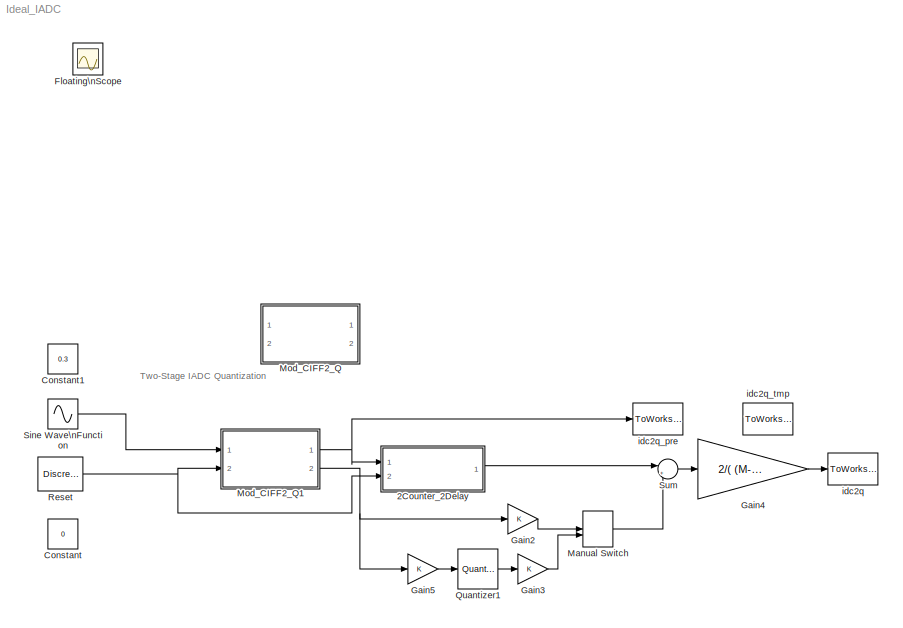
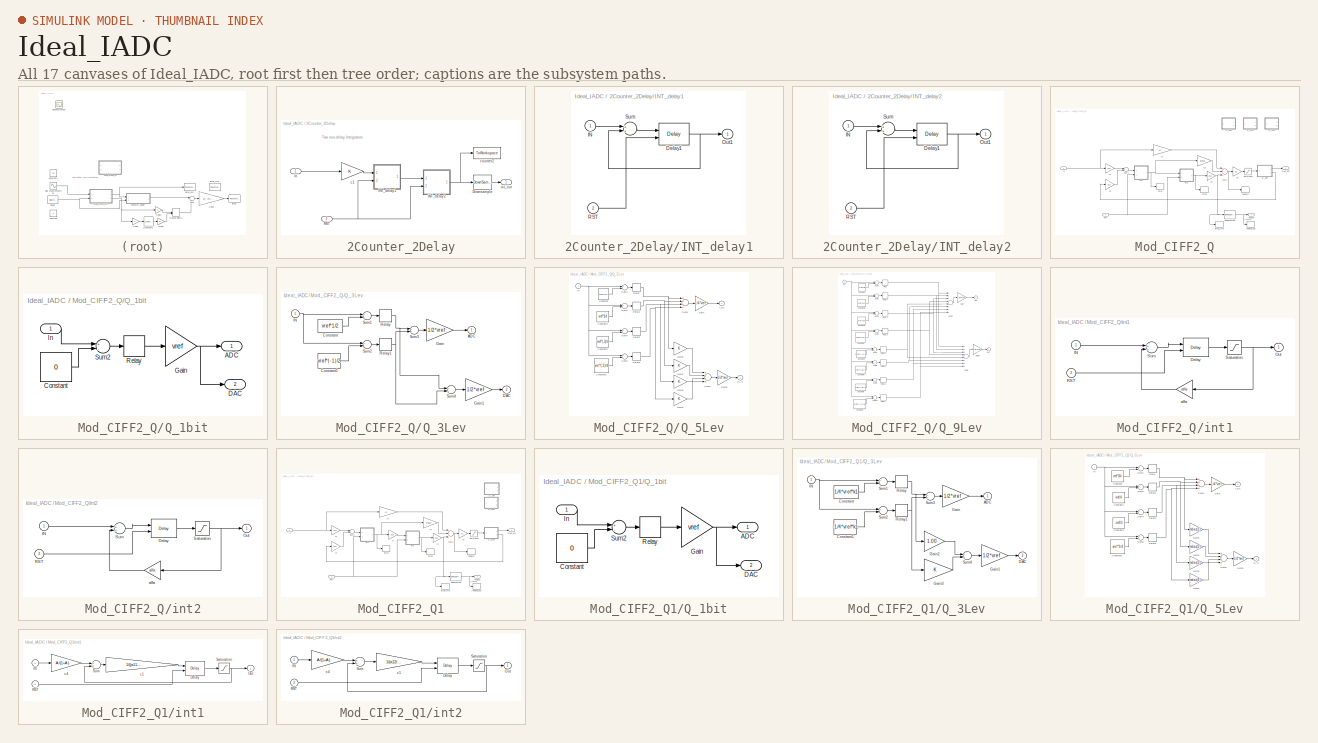
[diagram: thumbnail index - all 17 canvases of the model, root first then tree order]
MODEL Ideal_IADC
KIND model
BLOCK [SubSystem] 2Counter_2Delay
  Ports = [2, 1]
  RequestExecContextInheritance = off
  SID = 12296
BLOCK [DownSample] 2Counter_2Delay/Downsample
  InputProcessing = Elements as channels (sample based)
  N = OSR
  RateOptions = Allow multirate processing
  SID = 12299
  phase = OSR-1
BLOCK [SubSystem] 2Counter_2Delay/INT_delay1
  Ports = [2, 1]
  RequestExecContextInheritance = off
  SID = 12872
BLOCK [Delay] 2Counter_2Delay/INT_delay1/Delay1
  DelayLength = 1
  ExternalReset = Rising
  InitialCondition = 0
  InputPortMap = u0,r5
  Ports = [2, 1]
  SID = 12875
  UserData = DataTag0
  UserDataPersistent = on
BLOCK [Inport] 2Counter_2Delay/INT_delay1/IN
  IconDisplay = Port number
  SID = 12873
BLOCK [Outport] 2Counter_2Delay/INT_delay1/Out1
  IconDisplay = Port number
  SID = 12877
  VectorParamsAs1DForOutWhenUnconnected = off
BLOCK [Inport] 2Counter_2Delay/INT_delay1/RST
  IconDisplay = Port number
  Port = 2
  SID = 12874
BLOCK [Sum] 2Counter_2Delay/INT_delay1/Sum
  Ports = [2, 1]
  SID = 12876
BLOCK [SubSystem] 2Counter_2Delay/INT_delay2
  Ports = [2, 1]
  RequestExecContextInheritance = off
  SID = 12306
BLOCK [Delay] 2Counter_2Delay/INT_delay2/Delay1
  DelayLength = 1
  ExternalReset = Rising
  InitialCondition = 0
  InputPortMap = u0,r5
  Ports = [2, 1]
  SID = 12712
  UserData = DataTag1
  UserDataPersistent = on
BLOCK [Inport] 2Counter_2Delay/INT_delay2/IN
  IconDisplay = Port number
  SID = 12307
BLOCK [Outport] 2Counter_2Delay/INT_delay2/Out1
  IconDisplay = Port number
  SID = 12311
  VectorParamsAs1DForOutWhenUnconnected = off
BLOCK [Inport] 2Counter_2Delay/INT_delay2/RST
  IconDisplay = Port number
  Port = 2
  SID = 12308
BLOCK [Sum] 2Counter_2Delay/INT_delay2/Sum
  Ports = [2, 1]
  SID = 12310
BLOCK [Inport] 2Counter_2Delay/In
  IconDisplay = Port number
  SID = 12297
BLOCK [Inport] 2Counter_2Delay/RST
  IconDisplay = Port number
  Port = 2
  SID = 12298
BLOCK [Gain] 2Counter_2Delay/c1
  SID = 12312
BLOCK [ToWorkspace] 2Counter_2Delay/counter2
  MaxDataPoints = inf
  Ports = [1]
  SID = 12616
  SampleTime = -1
  VariableName = counter2
BLOCK [Outport] 2Counter_2Delay/rst_out
  IconDisplay = Port number
  SID = 12313
  VectorParamsAs1DForOutWhenUnconnected = off
BLOCK [Constant] Constant
  Commented = on
  SID = 12759
  Value = 0
BLOCK [Constant] Constant1
  Commented = on
  SID = 12900
  Value = 0.3
BLOCK [Scope] Floating\nScope
  Floating = off
  IOType = viewer
  NumInputPorts = 1
  Ports = []
  SID = 82
  ScopeSpecificationString = C++SS(StrPVP('Location','[376, 294, 963, 755]'),StrPVP('Open','off'),MxPVP('AxesTitles',54,'struct(''axes1'',''%<SignalLabel>'')'),StrPVP('DataFormat','StructureWithTime'),StrPVP('BlockParamSampleTime','0'),StrPVP('LimitDataPoints','on'),StrPVP('Decimation','1'),StrPVP('BlockParamSampleInput','off'))
BLOCK [Gain] Gain2
  OutDataTypeStr = Inherit: Inherit via internal rule
  ParamDataTypeStr = Inherit: Inherit via internal rule
  SID = 12955
  SaturateOnIntegerOverflow = off
BLOCK [Gain] Gain3
  OutDataTypeStr = Inherit: Inherit via internal rule
  ParamDataTypeStr = Inherit: Inherit via internal rule
  SID = 12956
  SaturateOnIntegerOverflow = off
BLOCK [Gain] Gain4
  Gain = 2/( (M-1)*(M) )
  OutDataTypeStr = Inherit: Inherit via internal rule
  ParamDataTypeStr = Inherit: Inherit via internal rule
  SID = 11902
  SaturateOnIntegerOverflow = off
BLOCK [Gain] Gain5
  OutDataTypeStr = Inherit: Inherit via internal rule
  ParamDataTypeStr = Inherit: Inherit via internal rule
  SID = 12957
  SaturateOnIntegerOverflow = off
BLOCK [ManualSwitch] Manual Switch
  CurrentSetting = 0
  SID = 12958
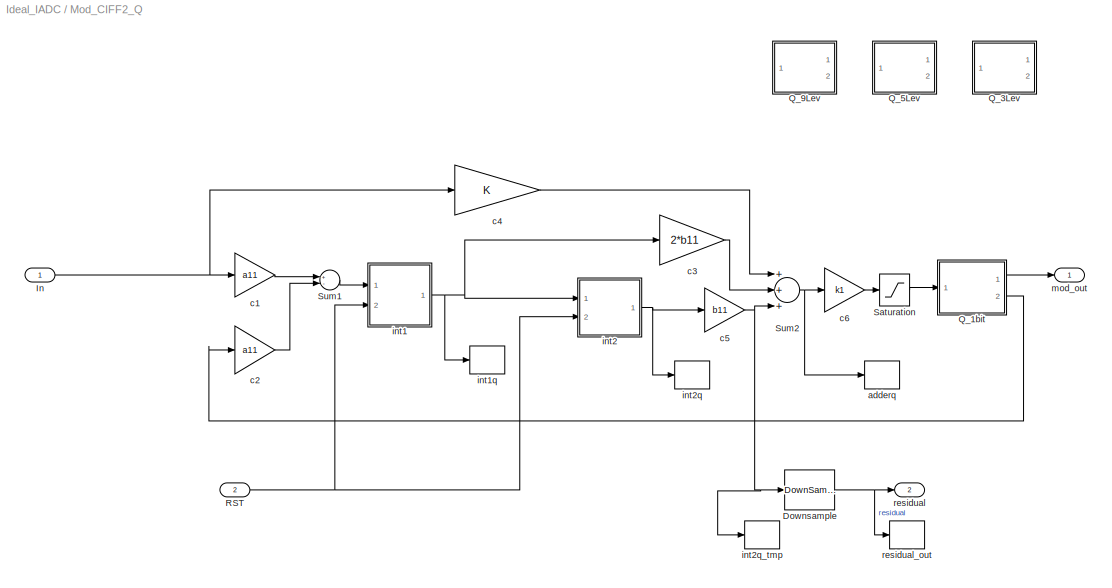
BLOCK [SubSystem] Mod_CIFF2_Q
  Commented = on
  Ports = [2, 2]
  RequestExecContextInheritance = off
  SID = 11903
BLOCK [DownSample] Mod_CIFF2_Q/Downsample
  InputProcessing = Elements as channels (sample based)
  N = OSR
  RateOptions = Allow multirate processing
  SID = 12760
  phase = OSR-1
BLOCK [Inport] Mod_CIFF2_Q/In
  IconDisplay = Port number
  SID = 11904
BLOCK [SubSystem] Mod_CIFF2_Q/Q_1bit
  Ports = [1, 2]
  RequestExecContextInheritance = off
  SID = 11919
BLOCK [Outport] Mod_CIFF2_Q/Q_1bit/ADC
  IconDisplay = Port number
  SID = 11925
  VectorParamsAs1DForOutWhenUnconnected = off
BLOCK [Constant] Mod_CIFF2_Q/Q_1bit/Constant
  SID = 11921
  Value = 0
BLOCK [Outport] Mod_CIFF2_Q/Q_1bit/DAC
  IconDisplay = Port number
  Port = 2
  SID = 11926
  VectorParamsAs1DForOutWhenUnconnected = off
BLOCK [Gain] Mod_CIFF2_Q/Q_1bit/Gain
  Gain = vref
  OutDataTypeStr = Inherit: Inherit via internal rule
  ParamDataTypeStr = Inherit: Inherit via internal rule
  SID = 11922
  SaturateOnIntegerOverflow = off
BLOCK [Inport] Mod_CIFF2_Q/Q_1bit/In
  IconDisplay = Port number
  SID = 11920
BLOCK [Relay] Mod_CIFF2_Q/Q_1bit/Relay
  OffOutputValue = -1
  SID = 11923
  SampleTime = tclk
BLOCK [Sum] Mod_CIFF2_Q/Q_1bit/Sum2
  Inputs = +-
  Ports = [2, 1]
  SID = 11924
BLOCK [SubSystem] Mod_CIFF2_Q/Q_3Lev
  Ports = [1, 2]
  RequestExecContextInheritance = off
  SID = 12583
BLOCK [Outport] Mod_CIFF2_Q/Q_3Lev/ADC
  IconDisplay = Port number
  SID = 12597
  VectorParamsAs1DForOutWhenUnconnected = off
BLOCK [Constant] Mod_CIFF2_Q/Q_3Lev/Constant
  SID = 12585
  Value = vref*1/2
BLOCK [Constant] Mod_CIFF2_Q/Q_3Lev/Constant1
  SID = 12586
  Value = vref*(-1)/2
BLOCK [Outport] Mod_CIFF2_Q/Q_3Lev/DAC
  IconDisplay = Port number
  Port = 2
  SID = 12598
  VectorParamsAs1DForOutWhenUnconnected = off
BLOCK [Gain] Mod_CIFF2_Q/Q_3Lev/Gain
  Gain = 1/2*vref
  OutDataTypeStr = Inherit: Inherit via internal rule
  ParamDataTypeStr = Inherit: Inherit via internal rule
  SID = 12587
  SaturateOnIntegerOverflow = off
BLOCK [Gain] Mod_CIFF2_Q/Q_3Lev/Gain1
  Gain = 1/2*vref
  OutDataTypeStr = Inherit: Inherit via internal rule
  ParamDataTypeStr = Inherit: Inherit via internal rule
  SID = 12588
  SaturateOnIntegerOverflow = off
BLOCK [Inport] Mod_CIFF2_Q/Q_3Lev/IN
  IconDisplay = Port number
  SID = 12584
BLOCK [Relay] Mod_CIFF2_Q/Q_3Lev/Relay
  OffOutputValue = -1
  SID = 12591
  SampleTime = tclk
BLOCK [Relay] Mod_CIFF2_Q/Q_3Lev/Relay1
  OffOutputValue = -1
  SID = 12592
  SampleTime = tclk
BLOCK [Sum] Mod_CIFF2_Q/Q_3Lev/Sum1
  Inputs = +-
  Ports = [2, 1]
  SID = 12593
BLOCK [Sum] Mod_CIFF2_Q/Q_3Lev/Sum2
  Inputs = +-
  Ports = [2, 1]
  SID = 12594
BLOCK [Sum] Mod_CIFF2_Q/Q_3Lev/Sum3
  Ports = [2, 1]
  SID = 12595
BLOCK [Sum] Mod_CIFF2_Q/Q_3Lev/Sum4
  Ports = [2, 1]
  SID = 12596
BLOCK [SubSystem] Mod_CIFF2_Q/Q_5Lev
  Ports = [1, 2]
  RequestExecContextInheritance = off
  SID = 12559
BLOCK [Outport] Mod_CIFF2_Q/Q_5Lev/ADC
  IconDisplay = Port number
  SID = 12581
  VectorParamsAs1DForOutWhenUnconnected = off
BLOCK [Constant] Mod_CIFF2_Q/Q_5Lev/Constant
  SID = 12561
  Value = vref*3/4
BLOCK [Constant] Mod_CIFF2_Q/Q_5Lev/Constant1
  SID = 12562
  Value = vref*1/4
BLOCK [Constant] Mod_CIFF2_Q/Q_5Lev/Constant2
  SID = 12563
  Value = vref*(-1)/4
BLOCK [Constant] Mod_CIFF2_Q/Q_5Lev/Constant3
  SID = 12564
  Value = vref*(-3)/4
BLOCK [Outport] Mod_CIFF2_Q/Q_5Lev/DAC
  IconDisplay = Port number
  Port = 2
  SID = 12582
  VectorParamsAs1DForOutWhenUnconnected = off
BLOCK [Gain] Mod_CIFF2_Q/Q_5Lev/Gain
  Gain = 1/4*vref
  OutDataTypeStr = Inherit: Inherit via internal rule
  ParamDataTypeStr = Inherit: Inherit via internal rule
  SID = 12565
  SaturateOnIntegerOverflow = off
BLOCK [Gain] Mod_CIFF2_Q/Q_5Lev/Gain1
  OutDataTypeStr = Inherit: Inherit via internal rule
  ParamDataTypeStr = Inherit: Inherit via internal rule
  SID = 12566
  SaturateOnIntegerOverflow = off
BLOCK [Gain] Mod_CIFF2_Q/Q_5Lev/Gain2
  OutDataTypeStr = Inherit: Inherit via internal rule
  ParamDataTypeStr = Inherit: Inherit via internal rule
  SID = 12567
  SaturateOnIntegerOverflow = off
BLOCK [Gain] Mod_CIFF2_Q/Q_5Lev/Gain3
  OutDataTypeStr = Inherit: Inherit via internal rule
  ParamDataTypeStr = Inherit: Inherit via internal rule
  SID = 12568
  SaturateOnIntegerOverflow = off
BLOCK [Gain] Mod_CIFF2_Q/Q_5Lev/Gain4
  OutDataTypeStr = Inherit: Inherit via internal rule
  ParamDataTypeStr = Inherit: Inherit via internal rule
  SID = 12569
  SaturateOnIntegerOverflow = off
BLOCK [Gain] Mod_CIFF2_Q/Q_5Lev/Gain5
  Gain = 1/4*vref
  OutDataTypeStr = Inherit: Inherit via internal rule
  ParamDataTypeStr = Inherit: Inherit via internal rule
  SID = 12570
  SaturateOnIntegerOverflow = off
BLOCK [Inport] Mod_CIFF2_Q/Q_5Lev/IN
  IconDisplay = Port number
  SID = 12560
BLOCK [Relay] Mod_CIFF2_Q/Q_5Lev/Relay
  OffOutputValue = -1
  SID = 12571
  SampleTime = tclk
BLOCK [Relay] Mod_CIFF2_Q/Q_5Lev/Relay1
  OffOutputValue = -1
  SID = 12572
  SampleTime = tclk
BLOCK [Relay] Mod_CIFF2_Q/Q_5Lev/Relay2
  OffOutputValue = -1
  SID = 12573
  SampleTime = tclk
BLOCK [Relay] Mod_CIFF2_Q/Q_5Lev/Relay3
  OffOutputValue = -1
  SID = 12574
  SampleTime = tclk
BLOCK [Sum] Mod_CIFF2_Q/Q_5Lev/Sum1
  Inputs = +-
  Ports = [2, 1]
  SID = 12575
BLOCK [Sum] Mod_CIFF2_Q/Q_5Lev/Sum2
  Inputs = +-
  Ports = [2, 1]
  SID = 12576
BLOCK [Sum] Mod_CIFF2_Q/Q_5Lev/Sum3
  Inputs = ++++
  Ports = [4, 1]
  SID = 12577
BLOCK [Sum] Mod_CIFF2_Q/Q_5Lev/Sum4
  Inputs = +-
  Ports = [2, 1]
  SID = 12578
BLOCK [Sum] Mod_CIFF2_Q/Q_5Lev/Sum5
  Inputs = +-
  Ports = [2, 1]
  SID = 12579
BLOCK [Sum] Mod_CIFF2_Q/Q_5Lev/Sum6
  Inputs = ++++
  Ports = [4, 1]
  SID = 12580
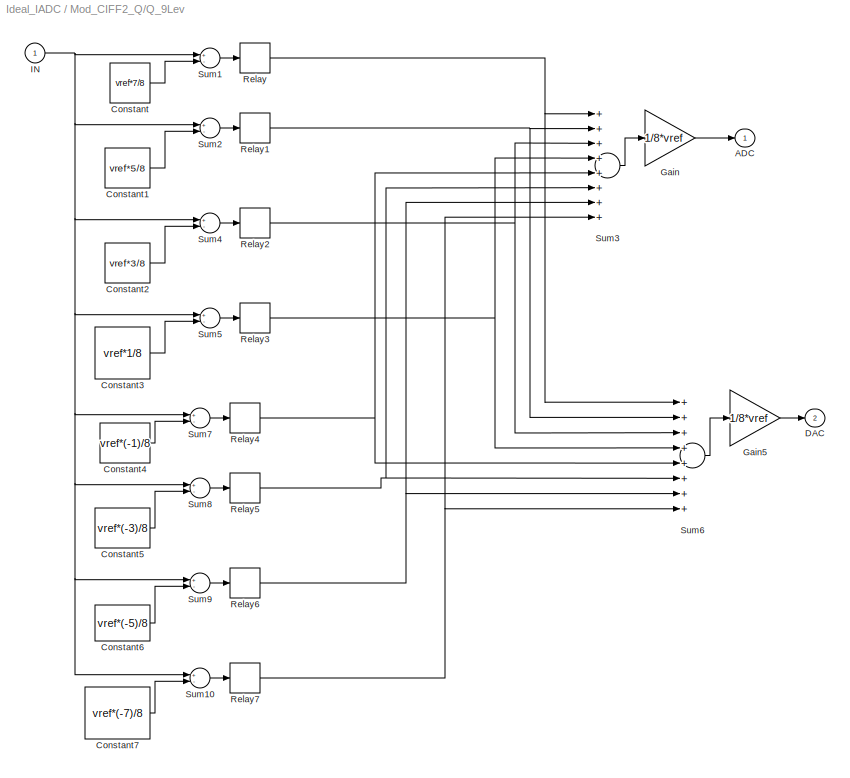
BLOCK [SubSystem] Mod_CIFF2_Q/Q_9Lev
  Ports = [1, 2]
  RequestExecContextInheritance = off
  SID = 12905
BLOCK [Outport] Mod_CIFF2_Q/Q_9Lev/ADC
  IconDisplay = Port number
  SID = 12927
  VectorParamsAs1DForOutWhenUnconnected = off
BLOCK [Constant] Mod_CIFF2_Q/Q_9Lev/Constant
  SID = 12907
  Value = vref*7/8
BLOCK [Constant] Mod_CIFF2_Q/Q_9Lev/Constant1
  SID = 12908
  Value = vref*5/8
BLOCK [Constant] Mod_CIFF2_Q/Q_9Lev/Constant2
  SID = 12909
  Value = vref*3/8
BLOCK [Constant] Mod_CIFF2_Q/Q_9Lev/Constant3
  SID = 12910
  Value = vref*1/8
BLOCK [Constant] Mod_CIFF2_Q/Q_9Lev/Constant4
  SID = 12941
  Value = vref*(-1)/8
BLOCK [Constant] Mod_CIFF2_Q/Q_9Lev/Constant5
  SID = 12942
  Value = vref*(-3)/8
BLOCK [Constant] Mod_CIFF2_Q/Q_9Lev/Constant6
  SID = 12943
  Value = vref*(-5)/8
BLOCK [Constant] Mod_CIFF2_Q/Q_9Lev/Constant7
  SID = 12944
  Value = vref*(-7)/8
BLOCK [Outport] Mod_CIFF2_Q/Q_9Lev/DAC
  IconDisplay = Port number
  Port = 2
  SID = 12928
  VectorParamsAs1DForOutWhenUnconnected = off
BLOCK [Gain] Mod_CIFF2_Q/Q_9Lev/Gain
  Gain = 1/8*vref
  OutDataTypeStr = Inherit: Inherit via internal rule
  ParamDataTypeStr = Inherit: Inherit via internal rule
  SID = 12911
  SaturateOnIntegerOverflow = off
BLOCK [Gain] Mod_CIFF2_Q/Q_9Lev/Gain5
  Gain = 1/8*vref
  OutDataTypeStr = Inherit: Inherit via internal rule
  ParamDataTypeStr = Inherit: Inherit via internal rule
  SID = 12916
  SaturateOnIntegerOverflow = off
BLOCK [Inport] Mod_CIFF2_Q/Q_9Lev/IN
  IconDisplay = Port number
  SID = 12906
BLOCK [Relay] Mod_CIFF2_Q/Q_9Lev/Relay
  OffOutputValue = -1
  SID = 12917
  SampleTime = tclk
BLOCK [Relay] Mod_CIFF2_Q/Q_9Lev/Relay1
  OffOutputValue = -1
  SID = 12918
  SampleTime = tclk
BLOCK [Relay] Mod_CIFF2_Q/Q_9Lev/Relay2
  OffOutputValue = -1
  SID = 12919
  SampleTime = tclk
BLOCK [Relay] Mod_CIFF2_Q/Q_9Lev/Relay3
  OffOutputValue = -1
  SID = 12920
  SampleTime = tclk
BLOCK [Relay] Mod_CIFF2_Q/Q_9Lev/Relay4
  OffOutputValue = -1
  SID = 12945
  SampleTime = tclk
BLOCK [Relay] Mod_CIFF2_Q/Q_9Lev/Relay5
  OffOutputValue = -1
  SID = 12946
  SampleTime = tclk
BLOCK [Relay] Mod_CIFF2_Q/Q_9Lev/Relay6
  OffOutputValue = -1
  SID = 12947
  SampleTime = tclk
BLOCK [Relay] Mod_CIFF2_Q/Q_9Lev/Relay7
  OffOutputValue = -1
  SID = 12948
  SampleTime = tclk
BLOCK [Sum] Mod_CIFF2_Q/Q_9Lev/Sum1
  Inputs = +-
  Ports = [2, 1]
  SID = 12921
BLOCK [Sum] Mod_CIFF2_Q/Q_9Lev/Sum10
  Inputs = +-
  Ports = [2, 1]
  SID = 12952
BLOCK [Sum] Mod_CIFF2_Q/Q_9Lev/Sum2
  Inputs = +-
  Ports = [2, 1]
  SID = 12922
BLOCK [Sum] Mod_CIFF2_Q/Q_9Lev/Sum3
  Inputs = ++++++++
  Ports = [8, 1]
  SID = 12923
BLOCK [Sum] Mod_CIFF2_Q/Q_9Lev/Sum4
  Inputs = +-
  Ports = [2, 1]
  SID = 12924
BLOCK [Sum] Mod_CIFF2_Q/Q_9Lev/Sum5
  Inputs = +-
  Ports = [2, 1]
  SID = 12925
BLOCK [Sum] Mod_CIFF2_Q/Q_9Lev/Sum6
  Inputs = ++++++++
  Ports = [8, 1]
  SID = 12926
BLOCK [Sum] Mod_CIFF2_Q/Q_9Lev/Sum7
  Inputs = +-
  Ports = [2, 1]
  SID = 12949
BLOCK [Sum] Mod_CIFF2_Q/Q_9Lev/Sum8
  Inputs = +-
  Ports = [2, 1]
  SID = 12950
BLOCK [Sum] Mod_CIFF2_Q/Q_9Lev/Sum9
  Inputs = +-
  Ports = [2, 1]
  SID = 12951
BLOCK [Inport] Mod_CIFF2_Q/RST
  IconDisplay = Port number
  Port = 2
  SID = 11905
BLOCK [Saturate] Mod_CIFF2_Q/Saturation
  InputPortMap = u0
  LowerLimit = -1*adder_max
  Ports = [1, 1]
  SID = 11967
  UpperLimit = adder_max*1
BLOCK [Sum] Mod_CIFF2_Q/Sum1
  Inputs = +-
  Ports = [2, 1]
  SID = 11968
BLOCK [Sum] Mod_CIFF2_Q/Sum2
  Inputs = +++
  Ports = [3, 1]
  SID = 11969
BLOCK [ToWorkspace] Mod_CIFF2_Q/adderq
  MaxDataPoints = inf
  Ports = [1]
  SID = 12749
  SampleTime = -1
  VariableName = adderq
BLOCK [Gain] Mod_CIFF2_Q/c1
  Gain = a11
  SID = 11970
BLOCK [Gain] Mod_CIFF2_Q/c2
  Gain = a11
  SID = 11971
BLOCK [Gain] Mod_CIFF2_Q/c3
  Gain = 2*b11
  SID = 11972
BLOCK [Gain] Mod_CIFF2_Q/c4
  SID = 11973
BLOCK [Gain] Mod_CIFF2_Q/c5
  Gain = b11
  SID = 11974
BLOCK [Gain] Mod_CIFF2_Q/c6
  Gain = k1
  SID = 11975
BLOCK [SubSystem] Mod_CIFF2_Q/int1
  Ports = [2, 1]
  RequestExecContextInheritance = off
  SID = 12646
BLOCK [Delay] Mod_CIFF2_Q/int1/Delay
  DelayLength = 1
  ExternalReset = Rising
  InitialCondition = 0
  InputPortMap = u0,r5
  Ports = [2, 1]
  SID = 12649
  UserData = DataTag2
  UserDataPersistent = on
BLOCK [Inport] Mod_CIFF2_Q/int1/IN
  IconDisplay = Port number
  SID = 12647
BLOCK [Outport] Mod_CIFF2_Q/int1/Out
  IconDisplay = Port number
  SID = 12653
  VectorParamsAs1DForOutWhenUnconnected = off
BLOCK [Inport] Mod_CIFF2_Q/int1/RST
  IconDisplay = Port number
  Port = 2
  SID = 12648
BLOCK [Saturate] Mod_CIFF2_Q/int1/Saturation
  InputPortMap = u0
  LowerLimit = -1*Amax
  Ports = [1, 1]
  SID = 12650
  UpperLimit = Amax
BLOCK [Sum] Mod_CIFF2_Q/int1/Sum
  Ports = [2, 1]
  SID = 12651
BLOCK [Gain] Mod_CIFF2_Q/int1/alfa
  Gain = alfa
  SID = 12652
BLOCK [ToWorkspace] Mod_CIFF2_Q/int1q
  MaxDataPoints = inf
  Ports = [1]
  SID = 11976
  SampleTime = -1
  VariableName = int1q
BLOCK [SubSystem] Mod_CIFF2_Q/int2
  Ports = [2, 1]
  RequestExecContextInheritance = off
  SID = 12654
BLOCK [Delay] Mod_CIFF2_Q/int2/Delay
  DelayLength = 1
  ExternalReset = Rising
  InitialCondition = 0
  InputPortMap = u0,r5
  Ports = [2, 1]
  SID = 12657
  UserData = DataTag3
  UserDataPersistent = on
BLOCK [Inport] Mod_CIFF2_Q/int2/IN
  IconDisplay = Port number
  SID = 12655
BLOCK [Outport] Mod_CIFF2_Q/int2/Out
  IconDisplay = Port number
  SID = 12661
  VectorParamsAs1DForOutWhenUnconnected = off
BLOCK [Inport] Mod_CIFF2_Q/int2/RST
  IconDisplay = Port number
  Port = 2
  SID = 12656
BLOCK [Saturate] Mod_CIFF2_Q/int2/Saturation
  InputPortMap = u0
  LowerLimit = -1*Amax
  Ports = [1, 1]
  SID = 12658
  UpperLimit = Amax
BLOCK [Sum] Mod_CIFF2_Q/int2/Sum
  Ports = [2, 1]
  SID = 12659
BLOCK [Gain] Mod_CIFF2_Q/int2/alfa
  Gain = alfa
  SID = 12660
BLOCK [ToWorkspace] Mod_CIFF2_Q/int2q
  MaxDataPoints = inf
  Ports = [1]
  SID = 11977
  SampleTime = -1
  VariableName = int2q
BLOCK [ToWorkspace] Mod_CIFF2_Q/int2q_tmp
  MaxDataPoints = inf
  Ports = [1]
  SID = 12871
  SampleTime = -1
  VariableName = int2q_tmp
BLOCK [Outport] Mod_CIFF2_Q/mod_out
  IconDisplay = Port number
  SID = 11988
  VectorParamsAs1DForOutWhenUnconnected = off
BLOCK [Outport] Mod_CIFF2_Q/residual
  IconDisplay = Port number
  Port = 2
  SID = 12761
  VectorParamsAs1DForOutWhenUnconnected = off
BLOCK [ToWorkspace] Mod_CIFF2_Q/residual_out
  MaxDataPoints = inf
  Ports = [1]
  SID = 12846
  SampleTime = -1
  VariableName = residual
BLOCK [SubSystem] Mod_CIFF2_Q1
  Ports = [2, 2]
  RequestExecContextInheritance = off
  SID = 12960
BLOCK [DownSample] Mod_CIFF2_Q1/Downsample
  InputProcessing = Elements as channels (sample based)
  N = OSR
  RateOptions = Allow multirate processing
  SID = 12963
  phase = OSR-1
BLOCK [Inport] Mod_CIFF2_Q1/In
  IconDisplay = Port number
  SID = 12961
BLOCK [SubSystem] Mod_CIFF2_Q1/Q_1bit
  Commented = on
  Ports = [1, 2]
  RequestExecContextInheritance = off
  SID = 12964
BLOCK [Outport] Mod_CIFF2_Q1/Q_1bit/ADC
  IconDisplay = Port number
  SID = 12970
  VectorParamsAs1DForOutWhenUnconnected = off
BLOCK [Constant] Mod_CIFF2_Q1/Q_1bit/Constant
  SID = 12966
  Value = 0
BLOCK [Outport] Mod_CIFF2_Q1/Q_1bit/DAC
  IconDisplay = Port number
  Port = 2
  SID = 12971
  VectorParamsAs1DForOutWhenUnconnected = off
BLOCK [Gain] Mod_CIFF2_Q1/Q_1bit/Gain
  Gain = vref
  OutDataTypeStr = Inherit: Inherit via internal rule
  ParamDataTypeStr = Inherit: Inherit via internal rule
  SID = 12967
  SaturateOnIntegerOverflow = off
BLOCK [Inport] Mod_CIFF2_Q1/Q_1bit/In
  IconDisplay = Port number
  SID = 12965
BLOCK [Relay] Mod_CIFF2_Q1/Q_1bit/Relay
  OffOutputValue = -1
  SID = 12968
  SampleTime = tclk
BLOCK [Sum] Mod_CIFF2_Q1/Q_1bit/Sum2
  Inputs = +-
  Ports = [2, 1]
  SID = 12969
BLOCK [SubSystem] Mod_CIFF2_Q1/Q_3Lev
  Commented = on
  Ports = [1, 2]
  RequestExecContextInheritance = off
  SID = 12972
BLOCK [Outport] Mod_CIFF2_Q1/Q_3Lev/ADC
  IconDisplay = Port number
  SID = 12986
  VectorParamsAs1DForOutWhenUnconnected = off
BLOCK [Constant] Mod_CIFF2_Q1/Q_3Lev/Constant
  SID = 12974
  Value = 1/4*vref*k1
BLOCK [Constant] Mod_CIFF2_Q1/Q_3Lev/Constant1
  SID = 12975
  Value = -1/4*vref*k1
BLOCK [Outport] Mod_CIFF2_Q1/Q_3Lev/DAC
  IconDisplay = Port number
  Port = 2
  SID = 12987
  VectorParamsAs1DForOutWhenUnconnected = off
BLOCK [Gain] Mod_CIFF2_Q1/Q_3Lev/Gain
  Gain = 1/2*vref
  OutDataTypeStr = Inherit: Inherit via internal rule
  ParamDataTypeStr = Inherit: Inherit via internal rule
  SID = 12976
  SaturateOnIntegerOverflow = off
BLOCK [Gain] Mod_CIFF2_Q1/Q_3Lev/Gain1
  Gain = 1/2*vref
  OutDataTypeStr = Inherit: Inherit via internal rule
  ParamDataTypeStr = Inherit: Inherit via internal rule
  SID = 12977
  SaturateOnIntegerOverflow = off
BLOCK [Gain] Mod_CIFF2_Q1/Q_3Lev/Gain2
  Gain = 1.00
  OutDataTypeStr = Inherit: Inherit via internal rule
  ParamDataTypeStr = Inherit: Inherit via internal rule
  SID = 12978
  SaturateOnIntegerOverflow = off
BLOCK [Gain] Mod_CIFF2_Q1/Q_3Lev/Gain3
  OutDataTypeStr = Inherit: Inherit via internal rule
  ParamDataTypeStr = Inherit: Inherit via internal rule
  SID = 12979
  SaturateOnIntegerOverflow = off
BLOCK [Inport] Mod_CIFF2_Q1/Q_3Lev/IN
  IconDisplay = Port number
  SID = 12973
BLOCK [Relay] Mod_CIFF2_Q1/Q_3Lev/Relay
  OffOutputValue = -1
  SID = 12980
  SampleTime = tclk
BLOCK [Relay] Mod_CIFF2_Q1/Q_3Lev/Relay1
  OffOutputValue = -1
  SID = 12981
  SampleTime = tclk
BLOCK [Sum] Mod_CIFF2_Q1/Q_3Lev/Sum1
  Inputs = +-
  Ports = [2, 1]
  SID = 12982
BLOCK [Sum] Mod_CIFF2_Q1/Q_3Lev/Sum2
  Inputs = +-
  Ports = [2, 1]
  SID = 12983
BLOCK [Sum] Mod_CIFF2_Q1/Q_3Lev/Sum3
  Ports = [2, 1]
  SID = 12984
BLOCK [Sum] Mod_CIFF2_Q1/Q_3Lev/Sum4
  Ports = [2, 1]
  SID = 12985
BLOCK [SubSystem] Mod_CIFF2_Q1/Q_5Lev
  Ports = [1, 2]
  RequestExecContextInheritance = off
  SID = 12988
BLOCK [Outport] Mod_CIFF2_Q1/Q_5Lev/ADC
  IconDisplay = Port number
  SID = 13010
  VectorParamsAs1DForOutWhenUnconnected = off
BLOCK [Constant] Mod_CIFF2_Q1/Q_5Lev/Constant
  SID = 12990
  Value = vref*3/4
BLOCK [Constant] Mod_CIFF2_Q1/Q_5Lev/Constant1
  SID = 12991
  Value = vref/4
BLOCK [Constant] Mod_CIFF2_Q1/Q_5Lev/Constant2
  SID = 12992
  Value = -vref/4
BLOCK [Constant] Mod_CIFF2_Q1/Q_5Lev/Constant3
  SID = 12993
  Value = -vref*3/4
BLOCK [Outport] Mod_CIFF2_Q1/Q_5Lev/DAC
  IconDisplay = Port number
  Port = 2
  SID = 13011
  VectorParamsAs1DForOutWhenUnconnected = off
BLOCK [Gain] Mod_CIFF2_Q1/Q_5Lev/Gain
  Gain = 1/4*vref
  OutDataTypeStr = Inherit: Inherit via internal rule
  ParamDataTypeStr = Inherit: Inherit via internal rule
  SID = 12994
  SaturateOnIntegerOverflow = off
BLOCK [Gain] Mod_CIFF2_Q1/Q_5Lev/Gain1
  Gain = mdac(2)
  OutDataTypeStr = Inherit: Inherit via internal rule
  ParamDataTypeStr = Inherit: Inherit via internal rule
  SID = 12995
  SaturateOnIntegerOverflow = off
BLOCK [Gain] Mod_CIFF2_Q1/Q_5Lev/Gain2
  Gain = mdac(1)
  OutDataTypeStr = Inherit: Inherit via internal rule
  ParamDataTypeStr = Inherit: Inherit via internal rule
  SID = 12996
  SaturateOnIntegerOverflow = off
BLOCK [Gain] Mod_CIFF2_Q1/Q_5Lev/Gain3
  Gain = mdac(3)
  OutDataTypeStr = Inherit: Inherit via internal rule
  ParamDataTypeStr = Inherit: Inherit via internal rule
  SID = 12997
  SaturateOnIntegerOverflow = off
BLOCK [Gain] Mod_CIFF2_Q1/Q_5Lev/Gain4
  Gain = mdac(4)
  OutDataTypeStr = Inherit: Inherit via internal rule
  ParamDataTypeStr = Inherit: Inherit via internal rule
  SID = 12998
  SaturateOnIntegerOverflow = off
BLOCK [Gain] Mod_CIFF2_Q1/Q_5Lev/Gain5
  Gain = 1/4*vref
  OutDataTypeStr = Inherit: Inherit via internal rule
  ParamDataTypeStr = Inherit: Inherit via internal rule
  SID = 12999
  SaturateOnIntegerOverflow = off
BLOCK [Inport] Mod_CIFF2_Q1/Q_5Lev/IN
  IconDisplay = Port number
  SID = 12989
BLOCK [Relay] Mod_CIFF2_Q1/Q_5Lev/Relay
  OffOutputValue = -1
  SID = 13000
  SampleTime = tclk
BLOCK [Relay] Mod_CIFF2_Q1/Q_5Lev/Relay1
  OffOutputValue = -1
  SID = 13001
  SampleTime = tclk
BLOCK [Relay] Mod_CIFF2_Q1/Q_5Lev/Relay2
  OffOutputValue = -1
  SID = 13002
  SampleTime = tclk
BLOCK [Relay] Mod_CIFF2_Q1/Q_5Lev/Relay3
  OffOutputValue = -1
  SID = 13003
  SampleTime = tclk
BLOCK [Sum] Mod_CIFF2_Q1/Q_5Lev/Sum1
  Inputs = +-
  Ports = [2, 1]
  SID = 13004
BLOCK [Sum] Mod_CIFF2_Q1/Q_5Lev/Sum2
  Inputs = +-
  Ports = [2, 1]
  SID = 13005
BLOCK [Sum] Mod_CIFF2_Q1/Q_5Lev/Sum3
  Inputs = ++++
  Ports = [4, 1]
  SID = 13006
BLOCK [Sum] Mod_CIFF2_Q1/Q_5Lev/Sum4
  Inputs = +-
  Ports = [2, 1]
  SID = 13007
BLOCK [Sum] Mod_CIFF2_Q1/Q_5Lev/Sum5
  Inputs = +-
  Ports = [2, 1]
  SID = 13008
BLOCK [Sum] Mod_CIFF2_Q1/Q_5Lev/Sum6
  Inputs = ++++
  Ports = [4, 1]
  SID = 13009
BLOCK [Inport] Mod_CIFF2_Q1/RST
  IconDisplay = Port number
  Port = 2
  SID = 12962
BLOCK [Saturate] Mod_CIFF2_Q1/Saturation
  InputPortMap = u0
  LowerLimit = -1*adder_max
  Ports = [1, 1]
  SID = 13012
  UpperLimit = adder_max*1
BLOCK [Sum] Mod_CIFF2_Q1/Sum1
  Inputs = +-
  Ports = [2, 1]
  SID = 13013
BLOCK [Sum] Mod_CIFF2_Q1/Sum2
  Inputs = +++
  Ports = [3, 1]
  SID = 13014
BLOCK [ToWorkspace] Mod_CIFF2_Q1/adderq
  MaxDataPoints = inf
  Ports = [1]
  SID = 13015
  SampleTime = -1
  VariableName = adderq
BLOCK [Gain] Mod_CIFF2_Q1/c1
  Gain = a11
  SID = 13016
BLOCK [Gain] Mod_CIFF2_Q1/c2
  Gain = a11
  SID = 13017
BLOCK [Gain] Mod_CIFF2_Q1/c3
  Gain = 2*b11
  SID = 13018
BLOCK [Gain] Mod_CIFF2_Q1/c4
  SID = 13019
BLOCK [Gain] Mod_CIFF2_Q1/c5
  Gain = b11
  SID = 13020
BLOCK [Gain] Mod_CIFF2_Q1/c6
  Gain = k1
  SID = 13021
BLOCK [Gain] Mod_CIFF2_Q1/c7
  Gain = a12
  SID = 13047
BLOCK [SubSystem] Mod_CIFF2_Q1/int1
  Ports = [2, 1]
  RequestExecContextInheritance = off
  SID = 13023
BLOCK [Delay] Mod_CIFF2_Q1/int1/Delay
  DelayLength = 1
  ExternalReset = Rising
  InitialCondition = 0
  InputPortMap = u0,r5
  Ports = [2, 1]
  SID = 13026
  UserData = DataTag4
  UserDataPersistent = on
BLOCK [Inport] Mod_CIFF2_Q1/int1/IN
  IconDisplay = Port number
  SID = 13024
BLOCK [Outport] Mod_CIFF2_Q1/int1/Out
  IconDisplay = Port number
  SID = 13031
  VectorParamsAs1DForOutWhenUnconnected = off
BLOCK [Inport] Mod_CIFF2_Q1/int1/RST
  IconDisplay = Port number
  Port = 2
  SID = 13025
BLOCK [Saturate] Mod_CIFF2_Q1/int1/Saturation
  InputPortMap = u0
  LowerLimit = -1*Amax
  Ports = [1, 1]
  SID = 13027
  UpperLimit = Amax
BLOCK [Sum] Mod_CIFF2_Q1/int1/Sum
  Ports = [2, 1]
  SID = 13028
BLOCK [Gain] Mod_CIFF2_Q1/int1/c1
  Gain = 1/((a11+a11)/(1+A) +1)
  SID = 13029
BLOCK [Gain] Mod_CIFF2_Q1/int1/c4
  Gain = A/(1+A)
  SID = 13030
BLOCK [ToWorkspace] Mod_CIFF2_Q1/int1q
  MaxDataPoints = inf
  Ports = [1]
  SID = 13032
  SampleTime = -1
  VariableName = int1q
BLOCK [SubSystem] Mod_CIFF2_Q1/int2
  Ports = [2, 1]
  RequestExecContextInheritance = off
  SID = 13033
BLOCK [Delay] Mod_CIFF2_Q1/int2/Delay
  DelayLength = 1
  ExternalReset = Rising
  InitialCondition = 0
  InputPortMap = u0,r5
  Ports = [2, 1]
  SID = 13036
  UserData = DataTag5
  UserDataPersistent = on
BLOCK [Inport] Mod_CIFF2_Q1/int2/IN
  IconDisplay = Port number
  SID = 13034
BLOCK [Outport] Mod_CIFF2_Q1/int2/Out
  IconDisplay = Port number
  SID = 13041
  VectorParamsAs1DForOutWhenUnconnected = off
BLOCK [Inport] Mod_CIFF2_Q1/int2/RST
  IconDisplay = Port number
  Port = 2
  SID = 13035
BLOCK [Saturate] Mod_CIFF2_Q1/int2/Saturation
  InputPortMap = u0
  LowerLimit = -1*Amax
  Ports = [1, 1]
  SID = 13037
  UpperLimit = Amax
BLOCK [Sum] Mod_CIFF2_Q1/int2/Sum
  Ports = [2, 1]
  SID = 13038
BLOCK [Gain] Mod_CIFF2_Q1/int2/c1
  Gain = 1/(a12/(1+A) +1)
  SID = 13039
BLOCK [Gain] Mod_CIFF2_Q1/int2/c4
  Gain = A/(1+A)
  SID = 13040
BLOCK [ToWorkspace] Mod_CIFF2_Q1/int2q
  MaxDataPoints = inf
  Ports = [1]
  SID = 13042
  SampleTime = -1
  VariableName = int2q
BLOCK [ToWorkspace] Mod_CIFF2_Q1/int2q_tmp
  MaxDataPoints = inf
  Ports = [1]
  SID = 13043
  SampleTime = -1
  VariableName = int2q_tmp
BLOCK [Outport] Mod_CIFF2_Q1/mod_out
  IconDisplay = Port number
  SID = 13045
  VectorParamsAs1DForOutWhenUnconnected = off
BLOCK [Outport] Mod_CIFF2_Q1/residual
  IconDisplay = Port number
  Port = 2
  SID = 13046
  VectorParamsAs1DForOutWhenUnconnected = off
BLOCK [ToWorkspace] Mod_CIFF2_Q1/residual_out
  MaxDataPoints = inf
  Ports = [1]
  SID = 13044
  SampleTime = -1
  VariableName = residual
BLOCK [Quantizer] Quantizer1
  LinearizeAsGain = off
  QuantizationInterval = vfs/1024
  SID = 12959
BLOCK [DiscretePulseGenerator] Reset
  Period = OSR
  Ports = [0, 1]
  SID = 3
  SampleTime = tclk
BLOCK [Sin] Sine Wave\nFunction
  Amplitude = vin_amp
  Frequency = fsig*2*pi
  Ports = [0, 1]
  SID = 12750
  SampleTime = tclk
BLOCK [Sum] Sum
  IconShape = round
  InputSameDT = off
  Inputs = |++
  OutDataTypeStr = Inherit: Inherit via internal rule
  Ports = [2, 1]
  SID = 12869
  SaturateOnIntegerOverflow = off
BLOCK [ToWorkspace] idc2q
  MaxDataPoints = inf
  Ports = [1]
  SID = 12033
  SampleTime = -1
  VariableName = idc2q
BLOCK [ToWorkspace] idc2q_pre
  MaxDataPoints = inf
  Ports = [1]
  SID = 12740
  SampleTime = -1
  VariableName = idc2q_pre
BLOCK [ToWorkspace] idc2q_tmp
  Commented = on
  MaxDataPoints = inf
  Ports = [1]
  SID = 12870
  SampleTime = -1
  VariableName = idc2q_tmp
ANNOTATION (root): Two-Stage IADC Quantization
ANNOTATION 2Counter_2Delay: Two non-delay Integrators
LINE 2Counter_2Delay/Downsample:1 -> 2Counter_2Delay/rst_out:1
NET 2Counter_2Delay/INT_delay1/Delay1:1 -> 2Counter_2Delay/INT_delay1/Out1:1, 2Counter_2Delay/INT_delay1/Sum:2
LINE 2Counter_2Delay/INT_delay1/IN:1 -> 2Counter_2Delay/INT_delay1/Sum:1
LINE 2Counter_2Delay/INT_delay1/RST:1 -> 2Counter_2Delay/INT_delay1/Delay1:2
LINE 2Counter_2Delay/INT_delay1/Sum:1 -> 2Counter_2Delay/INT_delay1/Delay1:1
LINE 2Counter_2Delay/INT_delay1:1 -> 2Counter_2Delay/INT_delay2:1
NET 2Counter_2Delay/INT_delay2/Delay1:1 -> 2Counter_2Delay/INT_delay2/Out1:1, 2Counter_2Delay/INT_delay2/Sum:2
LINE 2Counter_2Delay/INT_delay2/IN:1 -> 2Counter_2Delay/INT_delay2/Sum:1
LINE 2Counter_2Delay/INT_delay2/RST:1 -> 2Counter_2Delay/INT_delay2/Delay1:2
LINE 2Counter_2Delay/INT_delay2/Sum:1 -> 2Counter_2Delay/INT_delay2/Delay1:1
NET 2Counter_2Delay/INT_delay2:1 -> 2Counter_2Delay/Downsample:1, 2Counter_2Delay/counter2:1
LINE 2Counter_2Delay/In:1 -> 2Counter_2Delay/c1:1
NET 2Counter_2Delay/RST:1 -> 2Counter_2Delay/INT_delay1:2, 2Counter_2Delay/INT_delay2:2
LINE 2Counter_2Delay/c1:1 -> 2Counter_2Delay/INT_delay1:1
LINE 2Counter_2Delay:1 -> Sum:1
LINE Gain2:1 -> Manual Switch:1
LINE Gain3:1 -> Manual Switch:2
LINE Gain4:1 -> idc2q:1
LINE Gain5:1 -> Quantizer1:1
LINE Manual Switch:1 -> Sum:2
NET Mod_CIFF2_Q/Downsample:1 -> Mod_CIFF2_Q/residual:1, Mod_CIFF2_Q/residual_out:1
NET Mod_CIFF2_Q/In:1 -> Mod_CIFF2_Q/c1:1, Mod_CIFF2_Q/c4:1
LINE Mod_CIFF2_Q/Q_1bit/Constant:1 -> Mod_CIFF2_Q/Q_1bit/Sum2:2
NET Mod_CIFF2_Q/Q_1bit/Gain:1 -> Mod_CIFF2_Q/Q_1bit/ADC:1, Mod_CIFF2_Q/Q_1bit/DAC:1
LINE Mod_CIFF2_Q/Q_1bit/In:1 -> Mod_CIFF2_Q/Q_1bit/Sum2:1
LINE Mod_CIFF2_Q/Q_1bit/Relay:1 -> Mod_CIFF2_Q/Q_1bit/Gain:1
LINE Mod_CIFF2_Q/Q_1bit/Sum2:1 -> Mod_CIFF2_Q/Q_1bit/Relay:1
LINE Mod_CIFF2_Q/Q_1bit:1 -> Mod_CIFF2_Q/mod_out:1
LINE Mod_CIFF2_Q/Q_1bit:2 -> Mod_CIFF2_Q/c2:1
LINE Mod_CIFF2_Q/Q_3Lev/Constant1:1 -> Mod_CIFF2_Q/Q_3Lev/Sum2:2
LINE Mod_CIFF2_Q/Q_3Lev/Constant:1 -> Mod_CIFF2_Q/Q_3Lev/Sum1:2
LINE Mod_CIFF2_Q/Q_3Lev/Gain1:1 -> Mod_CIFF2_Q/Q_3Lev/DAC:1
LINE Mod_CIFF2_Q/Q_3Lev/Gain:1 -> Mod_CIFF2_Q/Q_3Lev/ADC:1
NET Mod_CIFF2_Q/Q_3Lev/IN:1 -> Mod_CIFF2_Q/Q_3Lev/Sum1:1, Mod_CIFF2_Q/Q_3Lev/Sum2:1
NET Mod_CIFF2_Q/Q_3Lev/Relay1:1 -> Mod_CIFF2_Q/Q_3Lev/Sum3:2, Mod_CIFF2_Q/Q_3Lev/Sum4:2
NET Mod_CIFF2_Q/Q_3Lev/Relay:1 -> Mod_CIFF2_Q/Q_3Lev/Sum3:1, Mod_CIFF2_Q/Q_3Lev/Sum4:1
LINE Mod_CIFF2_Q/Q_3Lev/Sum1:1 -> Mod_CIFF2_Q/Q_3Lev/Relay:1
LINE Mod_CIFF2_Q/Q_3Lev/Sum2:1 -> Mod_CIFF2_Q/Q_3Lev/Relay1:1
LINE Mod_CIFF2_Q/Q_3Lev/Sum3:1 -> Mod_CIFF2_Q/Q_3Lev/Gain:1
LINE Mod_CIFF2_Q/Q_3Lev/Sum4:1 -> Mod_CIFF2_Q/Q_3Lev/Gain1:1
LINE Mod_CIFF2_Q/Q_5Lev/Constant1:1 -> Mod_CIFF2_Q/Q_5Lev/Sum2:2
LINE Mod_CIFF2_Q/Q_5Lev/Constant2:1 -> Mod_CIFF2_Q/Q_5Lev/Sum4:2
LINE Mod_CIFF2_Q/Q_5Lev/Constant3:1 -> Mod_CIFF2_Q/Q_5Lev/Sum5:2
LINE Mod_CIFF2_Q/Q_5Lev/Constant:1 -> Mod_CIFF2_Q/Q_5Lev/Sum1:2
LINE Mod_CIFF2_Q/Q_5Lev/Gain1:1 -> Mod_CIFF2_Q/Q_5Lev/Sum6:2
LINE Mod_CIFF2_Q/Q_5Lev/Gain2:1 -> Mod_CIFF2_Q/Q_5Lev/Sum6:1
LINE Mod_CIFF2_Q/Q_5Lev/Gain3:1 -> Mod_CIFF2_Q/Q_5Lev/Sum6:3
LINE Mod_CIFF2_Q/Q_5Lev/Gain4:1 -> Mod_CIFF2_Q/Q_5Lev/Sum6:4
LINE Mod_CIFF2_Q/Q_5Lev/Gain5:1 -> Mod_CIFF2_Q/Q_5Lev/DAC:1
LINE Mod_CIFF2_Q/Q_5Lev/Gain:1 -> Mod_CIFF2_Q/Q_5Lev/ADC:1
NET Mod_CIFF2_Q/Q_5Lev/IN:1 -> Mod_CIFF2_Q/Q_5Lev/Sum1:1, Mod_CIFF2_Q/Q_5Lev/Sum2:1, Mod_CIFF2_Q/Q_5Lev/Sum4:1, Mod_CIFF2_Q/Q_5Lev/Sum5:1
NET Mod_CIFF2_Q/Q_5Lev/Relay1:1 -> Mod_CIFF2_Q/Q_5Lev/Gain1:1, Mod_CIFF2_Q/Q_5Lev/Sum3:2
NET Mod_CIFF2_Q/Q_5Lev/Relay2:1 -> Mod_CIFF2_Q/Q_5Lev/Gain3:1, Mod_CIFF2_Q/Q_5Lev/Sum3:3
NET Mod_CIFF2_Q/Q_5Lev/Relay3:1 -> Mod_CIFF2_Q/Q_5Lev/Gain4:1, Mod_CIFF2_Q/Q_5Lev/Sum3:4
NET Mod_CIFF2_Q/Q_5Lev/Relay:1 -> Mod_CIFF2_Q/Q_5Lev/Gain2:1, Mod_CIFF2_Q/Q_5Lev/Sum3:1
LINE Mod_CIFF2_Q/Q_5Lev/Sum1:1 -> Mod_CIFF2_Q/Q_5Lev/Relay:1
LINE Mod_CIFF2_Q/Q_5Lev/Sum2:1 -> Mod_CIFF2_Q/Q_5Lev/Relay1:1
LINE Mod_CIFF2_Q/Q_5Lev/Sum3:1 -> Mod_CIFF2_Q/Q_5Lev/Gain:1
LINE Mod_CIFF2_Q/Q_5Lev/Sum4:1 -> Mod_CIFF2_Q/Q_5Lev/Relay2:1
LINE Mod_CIFF2_Q/Q_5Lev/Sum5:1 -> Mod_CIFF2_Q/Q_5Lev/Relay3:1
LINE Mod_CIFF2_Q/Q_5Lev/Sum6:1 -> Mod_CIFF2_Q/Q_5Lev/Gain5:1
LINE Mod_CIFF2_Q/Q_9Lev/Constant1:1 -> Mod_CIFF2_Q/Q_9Lev/Sum2:2
LINE Mod_CIFF2_Q/Q_9Lev/Constant2:1 -> Mod_CIFF2_Q/Q_9Lev/Sum4:2
LINE Mod_CIFF2_Q/Q_9Lev/Constant3:1 -> Mod_CIFF2_Q/Q_9Lev/Sum5:2
LINE Mod_CIFF2_Q/Q_9Lev/Constant4:1 -> Mod_CIFF2_Q/Q_9Lev/Sum7:2
LINE Mod_CIFF2_Q/Q_9Lev/Constant5:1 -> Mod_CIFF2_Q/Q_9Lev/Sum8:2
LINE Mod_CIFF2_Q/Q_9Lev/Constant6:1 -> Mod_CIFF2_Q/Q_9Lev/Sum9:2
LINE Mod_CIFF2_Q/Q_9Lev/Constant7:1 -> Mod_CIFF2_Q/Q_9Lev/Sum10:2
LINE Mod_CIFF2_Q/Q_9Lev/Constant:1 -> Mod_CIFF2_Q/Q_9Lev/Sum1:2
LINE Mod_CIFF2_Q/Q_9Lev/Gain5:1 -> Mod_CIFF2_Q/Q_9Lev/DAC:1
LINE Mod_CIFF2_Q/Q_9Lev/Gain:1 -> Mod_CIFF2_Q/Q_9Lev/ADC:1
NET Mod_CIFF2_Q/Q_9Lev/IN:1 -> Mod_CIFF2_Q/Q_9Lev/Sum10:1, Mod_CIFF2_Q/Q_9Lev/Sum1:1, Mod_CIFF2_Q/Q_9Lev/Sum2:1, Mod_CIFF2_Q/Q_9Lev/Sum4:1, Mod_CIFF2_Q/Q_9Lev/Sum5:1, Mod_CIFF2_Q/Q_9Lev/Sum7:1, Mod_CIFF2_Q/Q_9Lev/Sum8:1, Mod_CIFF2_Q/Q_9Lev/Sum9:1
NET Mod_CIFF2_Q/Q_9Lev/Relay1:1 -> Mod_CIFF2_Q/Q_9Lev/Sum3:2, Mod_CIFF2_Q/Q_9Lev/Sum6:2
NET Mod_CIFF2_Q/Q_9Lev/Relay2:1 -> Mod_CIFF2_Q/Q_9Lev/Sum3:3, Mod_CIFF2_Q/Q_9Lev/Sum6:3
NET Mod_CIFF2_Q/Q_9Lev/Relay3:1 -> Mod_CIFF2_Q/Q_9Lev/Sum3:4, Mod_CIFF2_Q/Q_9Lev/Sum6:4
NET Mod_CIFF2_Q/Q_9Lev/Relay4:1 -> Mod_CIFF2_Q/Q_9Lev/Sum3:5, Mod_CIFF2_Q/Q_9Lev/Sum6:5
NET Mod_CIFF2_Q/Q_9Lev/Relay5:1 -> Mod_CIFF2_Q/Q_9Lev/Sum3:6, Mod_CIFF2_Q/Q_9Lev/Sum6:6
NET Mod_CIFF2_Q/Q_9Lev/Relay6:1 -> Mod_CIFF2_Q/Q_9Lev/Sum3:7, Mod_CIFF2_Q/Q_9Lev/Sum6:7
NET Mod_CIFF2_Q/Q_9Lev/Relay7:1 -> Mod_CIFF2_Q/Q_9Lev/Sum3:8, Mod_CIFF2_Q/Q_9Lev/Sum6:8
NET Mod_CIFF2_Q/Q_9Lev/Relay:1 -> Mod_CIFF2_Q/Q_9Lev/Sum3:1, Mod_CIFF2_Q/Q_9Lev/Sum6:1
LINE Mod_CIFF2_Q/Q_9Lev/Sum10:1 -> Mod_CIFF2_Q/Q_9Lev/Relay7:1
LINE Mod_CIFF2_Q/Q_9Lev/Sum1:1 -> Mod_CIFF2_Q/Q_9Lev/Relay:1
LINE Mod_CIFF2_Q/Q_9Lev/Sum2:1 -> Mod_CIFF2_Q/Q_9Lev/Relay1:1
LINE Mod_CIFF2_Q/Q_9Lev/Sum3:1 -> Mod_CIFF2_Q/Q_9Lev/Gain:1
LINE Mod_CIFF2_Q/Q_9Lev/Sum4:1 -> Mod_CIFF2_Q/Q_9Lev/Relay2:1
LINE Mod_CIFF2_Q/Q_9Lev/Sum5:1 -> Mod_CIFF2_Q/Q_9Lev/Relay3:1
LINE Mod_CIFF2_Q/Q_9Lev/Sum6:1 -> Mod_CIFF2_Q/Q_9Lev/Gain5:1
LINE Mod_CIFF2_Q/Q_9Lev/Sum7:1 -> Mod_CIFF2_Q/Q_9Lev/Relay4:1
LINE Mod_CIFF2_Q/Q_9Lev/Sum8:1 -> Mod_CIFF2_Q/Q_9Lev/Relay5:1
LINE Mod_CIFF2_Q/Q_9Lev/Sum9:1 -> Mod_CIFF2_Q/Q_9Lev/Relay6:1
NET Mod_CIFF2_Q/RST:1 -> Mod_CIFF2_Q/int1:2, Mod_CIFF2_Q/int2:2
LINE Mod_CIFF2_Q/Saturation:1 -> Mod_CIFF2_Q/Q_1bit:1
LINE Mod_CIFF2_Q/Sum1:1 -> Mod_CIFF2_Q/int1:1
NET Mod_CIFF2_Q/Sum2:1 -> Mod_CIFF2_Q/adderq:1, Mod_CIFF2_Q/c6:1
LINE Mod_CIFF2_Q/c1:1 -> Mod_CIFF2_Q/Sum1:1
LINE Mod_CIFF2_Q/c2:1 -> Mod_CIFF2_Q/Sum1:2
LINE Mod_CIFF2_Q/c3:1 -> Mod_CIFF2_Q/Sum2:2
LINE Mod_CIFF2_Q/c4:1 -> Mod_CIFF2_Q/Sum2:1
NET Mod_CIFF2_Q/c5:1 -> Mod_CIFF2_Q/Downsample:1, Mod_CIFF2_Q/Sum2:3, Mod_CIFF2_Q/int2q_tmp:1
LINE Mod_CIFF2_Q/c6:1 -> Mod_CIFF2_Q/Saturation:1
LINE Mod_CIFF2_Q/int1/Delay:1 -> Mod_CIFF2_Q/int1/Saturation:1
LINE Mod_CIFF2_Q/int1/IN:1 -> Mod_CIFF2_Q/int1/Sum:1
LINE Mod_CIFF2_Q/int1/RST:1 -> Mod_CIFF2_Q/int1/Delay:2
NET Mod_CIFF2_Q/int1/Saturation:1 -> Mod_CIFF2_Q/int1/Out:1, Mod_CIFF2_Q/int1/alfa:1
LINE Mod_CIFF2_Q/int1/Sum:1 -> Mod_CIFF2_Q/int1/Delay:1
LINE Mod_CIFF2_Q/int1/alfa:1 -> Mod_CIFF2_Q/int1/Sum:2
NET Mod_CIFF2_Q/int1:1 -> Mod_CIFF2_Q/c3:1, Mod_CIFF2_Q/int1q:1, Mod_CIFF2_Q/int2:1
LINE Mod_CIFF2_Q/int2/Delay:1 -> Mod_CIFF2_Q/int2/Saturation:1
LINE Mod_CIFF2_Q/int2/IN:1 -> Mod_CIFF2_Q/int2/Sum:1
LINE Mod_CIFF2_Q/int2/RST:1 -> Mod_CIFF2_Q/int2/Delay:2
NET Mod_CIFF2_Q/int2/Saturation:1 -> Mod_CIFF2_Q/int2/Out:1, Mod_CIFF2_Q/int2/alfa:1
LINE Mod_CIFF2_Q/int2/Sum:1 -> Mod_CIFF2_Q/int2/Delay:1
LINE Mod_CIFF2_Q/int2/alfa:1 -> Mod_CIFF2_Q/int2/Sum:2
NET Mod_CIFF2_Q/int2:1 -> Mod_CIFF2_Q/c5:1, Mod_CIFF2_Q/int2q:1
NET Mod_CIFF2_Q1/Downsample:1 -> Mod_CIFF2_Q1/residual:1, Mod_CIFF2_Q1/residual_out:1
NET Mod_CIFF2_Q1/In:1 -> Mod_CIFF2_Q1/c1:1, Mod_CIFF2_Q1/c4:1
LINE Mod_CIFF2_Q1/Q_1bit/Constant:1 -> Mod_CIFF2_Q1/Q_1bit/Sum2:2
NET Mod_CIFF2_Q1/Q_1bit/Gain:1 -> Mod_CIFF2_Q1/Q_1bit/ADC:1, Mod_CIFF2_Q1/Q_1bit/DAC:1
LINE Mod_CIFF2_Q1/Q_1bit/In:1 -> Mod_CIFF2_Q1/Q_1bit/Sum2:1
LINE Mod_CIFF2_Q1/Q_1bit/Relay:1 -> Mod_CIFF2_Q1/Q_1bit/Gain:1
LINE Mod_CIFF2_Q1/Q_1bit/Sum2:1 -> Mod_CIFF2_Q1/Q_1bit/Relay:1
LINE Mod_CIFF2_Q1/Q_3Lev/Constant1:1 -> Mod_CIFF2_Q1/Q_3Lev/Sum2:2
LINE Mod_CIFF2_Q1/Q_3Lev/Constant:1 -> Mod_CIFF2_Q1/Q_3Lev/Sum1:2
LINE Mod_CIFF2_Q1/Q_3Lev/Gain1:1 -> Mod_CIFF2_Q1/Q_3Lev/DAC:1
LINE Mod_CIFF2_Q1/Q_3Lev/Gain2:1 -> Mod_CIFF2_Q1/Q_3Lev/Sum4:1
LINE Mod_CIFF2_Q1/Q_3Lev/Gain3:1 -> Mod_CIFF2_Q1/Q_3Lev/Sum4:2
LINE Mod_CIFF2_Q1/Q_3Lev/Gain:1 -> Mod_CIFF2_Q1/Q_3Lev/ADC:1
NET Mod_CIFF2_Q1/Q_3Lev/IN:1 -> Mod_CIFF2_Q1/Q_3Lev/Sum1:1, Mod_CIFF2_Q1/Q_3Lev/Sum2:1
NET Mod_CIFF2_Q1/Q_3Lev/Relay1:1 -> Mod_CIFF2_Q1/Q_3Lev/Gain3:1, Mod_CIFF2_Q1/Q_3Lev/Sum3:2
NET Mod_CIFF2_Q1/Q_3Lev/Relay:1 -> Mod_CIFF2_Q1/Q_3Lev/Gain2:1, Mod_CIFF2_Q1/Q_3Lev/Sum3:1
LINE Mod_CIFF2_Q1/Q_3Lev/Sum1:1 -> Mod_CIFF2_Q1/Q_3Lev/Relay:1
LINE Mod_CIFF2_Q1/Q_3Lev/Sum2:1 -> Mod_CIFF2_Q1/Q_3Lev/Relay1:1
LINE Mod_CIFF2_Q1/Q_3Lev/Sum3:1 -> Mod_CIFF2_Q1/Q_3Lev/Gain:1
LINE Mod_CIFF2_Q1/Q_3Lev/Sum4:1 -> Mod_CIFF2_Q1/Q_3Lev/Gain1:1
LINE Mod_CIFF2_Q1/Q_5Lev/Constant1:1 -> Mod_CIFF2_Q1/Q_5Lev/Sum2:2
LINE Mod_CIFF2_Q1/Q_5Lev/Constant2:1 -> Mod_CIFF2_Q1/Q_5Lev/Sum4:2
LINE Mod_CIFF2_Q1/Q_5Lev/Constant3:1 -> Mod_CIFF2_Q1/Q_5Lev/Sum5:2
LINE Mod_CIFF2_Q1/Q_5Lev/Constant:1 -> Mod_CIFF2_Q1/Q_5Lev/Sum1:2
LINE Mod_CIFF2_Q1/Q_5Lev/Gain1:1 -> Mod_CIFF2_Q1/Q_5Lev/Sum6:2
LINE Mod_CIFF2_Q1/Q_5Lev/Gain2:1 -> Mod_CIFF2_Q1/Q_5Lev/Sum6:1
LINE Mod_CIFF2_Q1/Q_5Lev/Gain3:1 -> Mod_CIFF2_Q1/Q_5Lev/Sum6:3
LINE Mod_CIFF2_Q1/Q_5Lev/Gain4:1 -> Mod_CIFF2_Q1/Q_5Lev/Sum6:4
LINE Mod_CIFF2_Q1/Q_5Lev/Gain5:1 -> Mod_CIFF2_Q1/Q_5Lev/DAC:1
LINE Mod_CIFF2_Q1/Q_5Lev/Gain:1 -> Mod_CIFF2_Q1/Q_5Lev/ADC:1
NET Mod_CIFF2_Q1/Q_5Lev/IN:1 -> Mod_CIFF2_Q1/Q_5Lev/Sum1:1, Mod_CIFF2_Q1/Q_5Lev/Sum2:1, Mod_CIFF2_Q1/Q_5Lev/Sum4:1, Mod_CIFF2_Q1/Q_5Lev/Sum5:1
NET Mod_CIFF2_Q1/Q_5Lev/Relay1:1 -> Mod_CIFF2_Q1/Q_5Lev/Gain1:1, Mod_CIFF2_Q1/Q_5Lev/Sum3:2
NET Mod_CIFF2_Q1/Q_5Lev/Relay2:1 -> Mod_CIFF2_Q1/Q_5Lev/Gain3:1, Mod_CIFF2_Q1/Q_5Lev/Sum3:3
NET Mod_CIFF2_Q1/Q_5Lev/Relay3:1 -> Mod_CIFF2_Q1/Q_5Lev/Gain4:1, Mod_CIFF2_Q1/Q_5Lev/Sum3:4
NET Mod_CIFF2_Q1/Q_5Lev/Relay:1 -> Mod_CIFF2_Q1/Q_5Lev/Gain2:1, Mod_CIFF2_Q1/Q_5Lev/Sum3:1
LINE Mod_CIFF2_Q1/Q_5Lev/Sum1:1 -> Mod_CIFF2_Q1/Q_5Lev/Relay:1
LINE Mod_CIFF2_Q1/Q_5Lev/Sum2:1 -> Mod_CIFF2_Q1/Q_5Lev/Relay1:1
LINE Mod_CIFF2_Q1/Q_5Lev/Sum3:1 -> Mod_CIFF2_Q1/Q_5Lev/Gain:1
LINE Mod_CIFF2_Q1/Q_5Lev/Sum4:1 -> Mod_CIFF2_Q1/Q_5Lev/Relay2:1
LINE Mod_CIFF2_Q1/Q_5Lev/Sum5:1 -> Mod_CIFF2_Q1/Q_5Lev/Relay3:1
LINE Mod_CIFF2_Q1/Q_5Lev/Sum6:1 -> Mod_CIFF2_Q1/Q_5Lev/Gain5:1
LINE Mod_CIFF2_Q1/Q_5Lev:1 -> Mod_CIFF2_Q1/mod_out:1
LINE Mod_CIFF2_Q1/Q_5Lev:2 -> Mod_CIFF2_Q1/c2:1
NET Mod_CIFF2_Q1/RST:1 -> Mod_CIFF2_Q1/int1:2, Mod_CIFF2_Q1/int2:2
LINE Mod_CIFF2_Q1/Saturation:1 -> Mod_CIFF2_Q1/Q_5Lev:1
LINE Mod_CIFF2_Q1/Sum1:1 -> Mod_CIFF2_Q1/int1:1
NET Mod_CIFF2_Q1/Sum2:1 -> Mod_CIFF2_Q1/adderq:1, Mod_CIFF2_Q1/c6:1
LINE Mod_CIFF2_Q1/c1:1 -> Mod_CIFF2_Q1/Sum1:1
LINE Mod_CIFF2_Q1/c2:1 -> Mod_CIFF2_Q1/Sum1:2
LINE Mod_CIFF2_Q1/c3:1 -> Mod_CIFF2_Q1/Sum2:2
LINE Mod_CIFF2_Q1/c4:1 -> Mod_CIFF2_Q1/Sum2:1
NET Mod_CIFF2_Q1/c5:1 -> Mod_CIFF2_Q1/Downsample:1, Mod_CIFF2_Q1/Sum2:3, Mod_CIFF2_Q1/int2q_tmp:1
LINE Mod_CIFF2_Q1/c6:1 -> Mod_CIFF2_Q1/Saturation:1
LINE Mod_CIFF2_Q1/c7:1 -> Mod_CIFF2_Q1/int2:1
LINE Mod_CIFF2_Q1/int1/Delay:1 -> Mod_CIFF2_Q1/int1/Saturation:1
LINE Mod_CIFF2_Q1/int1/IN:1 -> Mod_CIFF2_Q1/int1/c4:1
LINE Mod_CIFF2_Q1/int1/RST:1 -> Mod_CIFF2_Q1/int1/Delay:2
NET Mod_CIFF2_Q1/int1/Saturation:1 -> Mod_CIFF2_Q1/int1/Out:1, Mod_CIFF2_Q1/int1/Sum:2
LINE Mod_CIFF2_Q1/int1/Sum:1 -> Mod_CIFF2_Q1/int1/c1:1
LINE Mod_CIFF2_Q1/int1/c1:1 -> Mod_CIFF2_Q1/int1/Delay:1
LINE Mod_CIFF2_Q1/int1/c4:1 -> Mod_CIFF2_Q1/int1/Sum:1
NET Mod_CIFF2_Q1/int1:1 -> Mod_CIFF2_Q1/c3:1, Mod_CIFF2_Q1/c7:1, Mod_CIFF2_Q1/int1q:1
LINE Mod_CIFF2_Q1/int2/Delay:1 -> Mod_CIFF2_Q1/int2/Saturation:1
LINE Mod_CIFF2_Q1/int2/IN:1 -> Mod_CIFF2_Q1/int2/c4:1
LINE Mod_CIFF2_Q1/int2/RST:1 -> Mod_CIFF2_Q1/int2/Delay:2
NET Mod_CIFF2_Q1/int2/Saturation:1 -> Mod_CIFF2_Q1/int2/Out:1, Mod_CIFF2_Q1/int2/Sum:2
LINE Mod_CIFF2_Q1/int2/Sum:1 -> Mod_CIFF2_Q1/int2/c1:1
LINE Mod_CIFF2_Q1/int2/c1:1 -> Mod_CIFF2_Q1/int2/Delay:1
LINE Mod_CIFF2_Q1/int2/c4:1 -> Mod_CIFF2_Q1/int2/Sum:1
NET Mod_CIFF2_Q1/int2:1 -> Mod_CIFF2_Q1/c5:1, Mod_CIFF2_Q1/int2q:1
NET Mod_CIFF2_Q1:1 -> 2Counter_2Delay:1, idc2q_pre:1
NET Mod_CIFF2_Q1:2 -> Gain2:1, Gain5:1
LINE Quantizer1:1 -> Gain3:1
NET Reset:1 -> 2Counter_2Delay:2, Mod_CIFF2_Q1:2
LINE Sine Wave\nFunction:1 -> Mod_CIFF2_Q1:1
LINE Sum:1 -> Gain4:1
note: NET lines group one-source signal fan-out (src -> all destinations, sorted); 1:1 wires keep LINE
